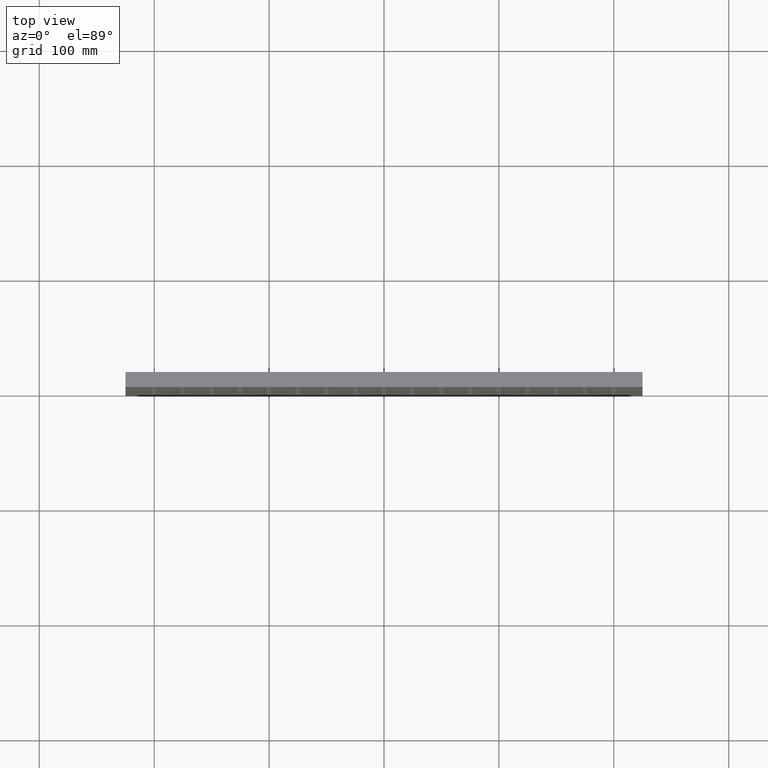
[diagram: clean part render]
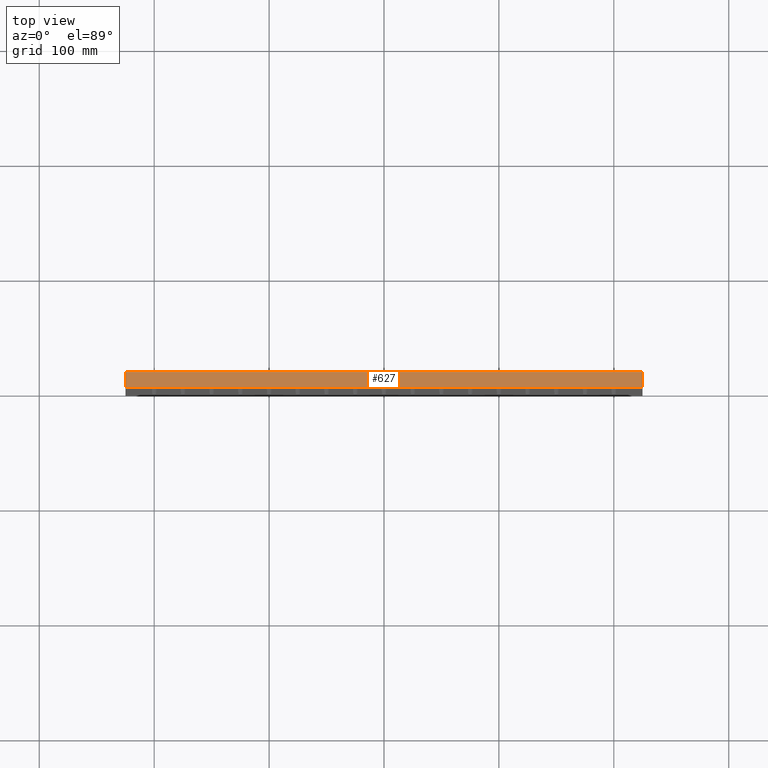
[diagram: same view with one face highlighted and labeled with its STEP entity id]
A machine part, top view. The second image highlights one B-rep face of the part: STEP entity #627.
In plain terms, the highlighted planar face has unit normal (0, 0, -1).
Its self-contained STEP definition (entity closure, byte-faithful):
#627 = ADVANCED_FACE ( 'NONE', ( #19557 ), #21519, .F. ) ;
#1453 = CARTESIAN_POINT ( 'NONE',  ( -224.9999999999999432, 13.00000000000000000, 225.0000000000000284 ) ) ;
#1658 = EDGE_CURVE ( 'NONE', #2879, #2097, #11515, .T. ) ;
#2097 = VERTEX_POINT ( 'NONE', #11592 ) ;
#2879 = VERTEX_POINT ( 'NONE', #8923 ) ;
#3440 = EDGE_CURVE ( 'NONE', #3649, #2879, #17961, .T. ) ;
#3649 = VERTEX_POINT ( 'NONE', #7425 ) ;
#3685 = CARTESIAN_POINT ( 'NONE',  ( -224.9999999999999432, 13.00000000000000000, 225.0000000000000284 ) ) ;
#4248 = AXIS2_PLACEMENT_3D ( 'NONE', #4712, #21195, #4823 ) ;
#4712 = CARTESIAN_POINT ( 'NONE',  ( -224.9999999999999432, 13.00000000000000000, 225.0000000000000284 ) ) ;
#4823 = DIRECTION ( 'NONE',  ( -1.000000000000000000, 0.000000000000000000, -0.000000000000000000 ) ) ;
#5591 = VERTEX_POINT ( 'NONE', #7507 ) ;
#6595 = CARTESIAN_POINT ( 'NONE',  ( 225.0000000000000568, 13.00000000000000000, 225.0000000000000284 ) ) ;
#6768 = DIRECTION ( 'NONE',  ( -0.000000000000000000, -1.000000000000000000, -0.000000000000000000 ) ) ;
#7208 = VECTOR ( 'NONE', #7622, 1000.000000000000000 ) ;
#7425 = CARTESIAN_POINT ( 'NONE',  ( -224.9999999999999432, 13.00000000000000000, 225.0000000000000284 ) ) ;
#7507 = CARTESIAN_POINT ( 'NONE',  ( -224.9999999999999432, 0.000000000000000000, 225.0000000000000284 ) ) ;
#7622 = DIRECTION ( 'NONE',  ( 1.000000000000000000, 0.000000000000000000, 0.000000000000000000 ) ) ;
#8151 = ORIENTED_EDGE ( 'NONE', *, *, #3440, .F. ) ;
#8923 = CARTESIAN_POINT ( 'NONE',  ( 225.0000000000000568, 13.00000000000000000, 225.0000000000000284 ) ) ;
#10732 = VECTOR ( 'NONE', #21438, 1000.000000000000000 ) ;
#11454 = ORIENTED_EDGE ( 'NONE', *, *, #11672, .T. ) ;
#11515 = LINE ( 'NONE', #6595, #15059 ) ;
#11592 = CARTESIAN_POINT ( 'NONE',  ( 225.0000000000000568, 0.000000000000000000, 225.0000000000000284 ) ) ;
#11672 = EDGE_CURVE ( 'NONE', #3649, #5591, #18552, .T. ) ;
#11875 = EDGE_CURVE ( 'NONE', #5591, #2097, #20720, .T. ) ;
#15059 = VECTOR ( 'NONE', #19899, 1000.000000000000000 ) ;
#15924 = CARTESIAN_POINT ( 'NONE',  ( -224.9999999999999432, 0.000000000000000000, 225.0000000000000284 ) ) ;
#15959 = ORIENTED_EDGE ( 'NONE', *, *, #1658, .F. ) ;
#16342 = EDGE_LOOP ( 'NONE', ( #18710, #15959, #8151, #11454 ) ) ;
#16974 = VECTOR ( 'NONE', #6768, 1000.000000000000000 ) ;
#17961 = LINE ( 'NONE', #1453, #10732 ) ;
#18552 = LINE ( 'NONE', #3685, #16974 ) ;
#18710 = ORIENTED_EDGE ( 'NONE', *, *, #11875, .T. ) ;
#19557 = FACE_OUTER_BOUND ( 'NONE', #16342, .T. ) ;
#19899 = DIRECTION ( 'NONE',  ( -0.000000000000000000, -1.000000000000000000, -0.000000000000000000 ) ) ;
#20720 = LINE ( 'NONE', #15924, #7208 ) ;
#21195 = DIRECTION ( 'NONE',  ( 0.000000000000000000, 0.000000000000000000, -1.000000000000000000 ) ) ;
#21438 = DIRECTION ( 'NONE',  ( 1.000000000000000000, 0.000000000000000000, 0.000000000000000000 ) ) ;
#21519 = PLANE ( 'NONE',  #4248 ) ;